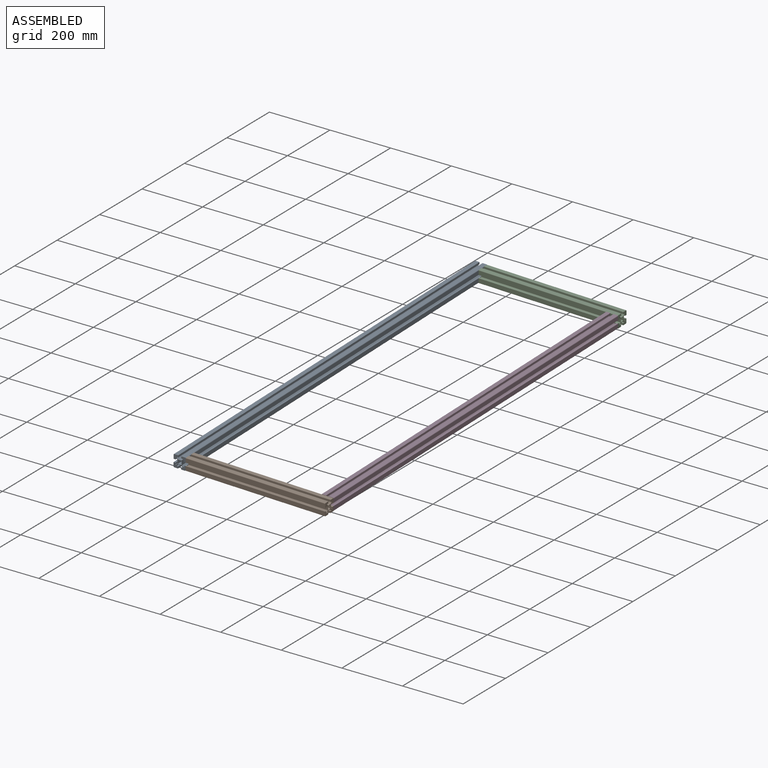
[diagram: assembled view]
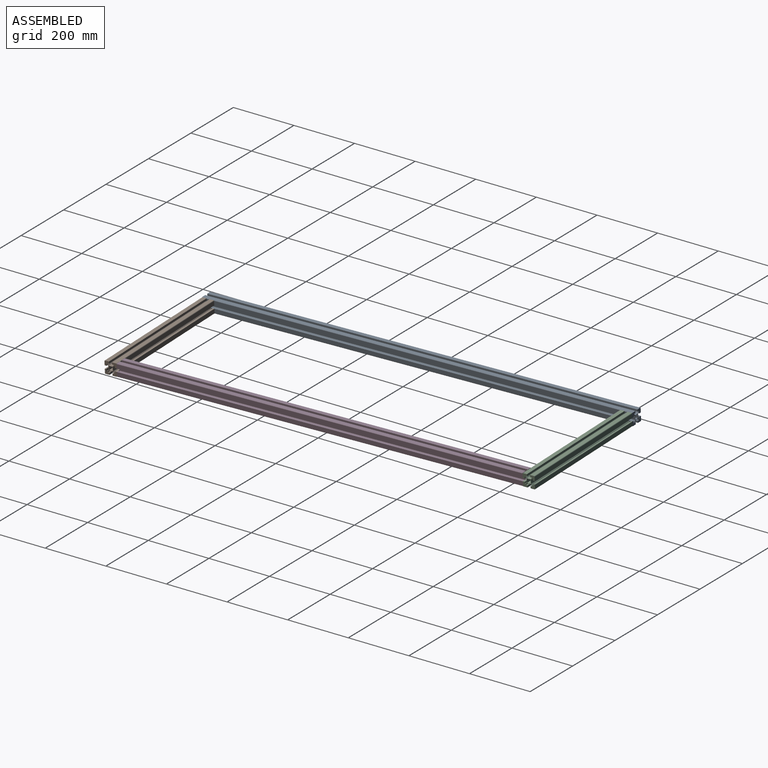
[diagram: assembled view, second angle]
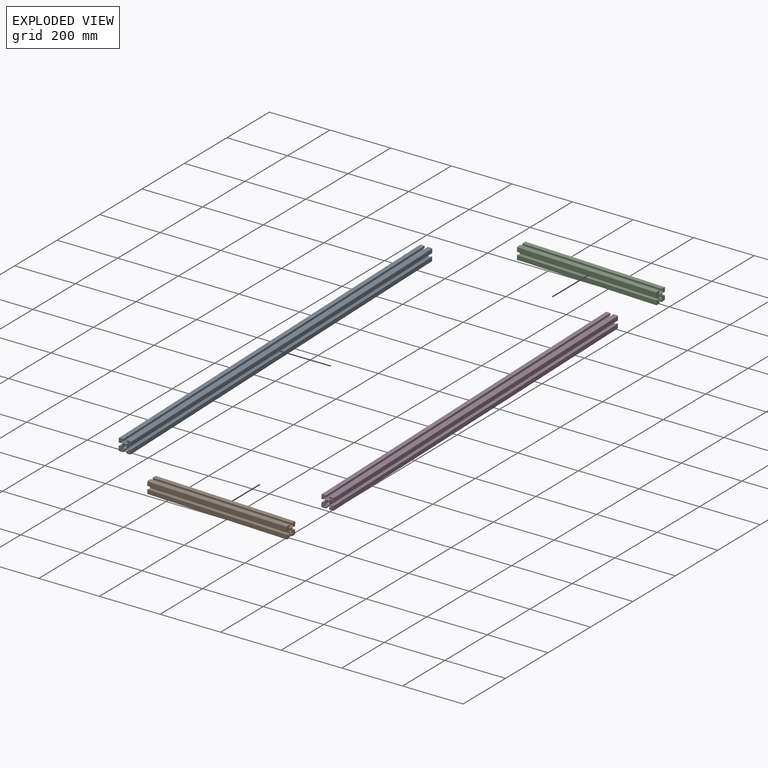
[diagram: exploded view]
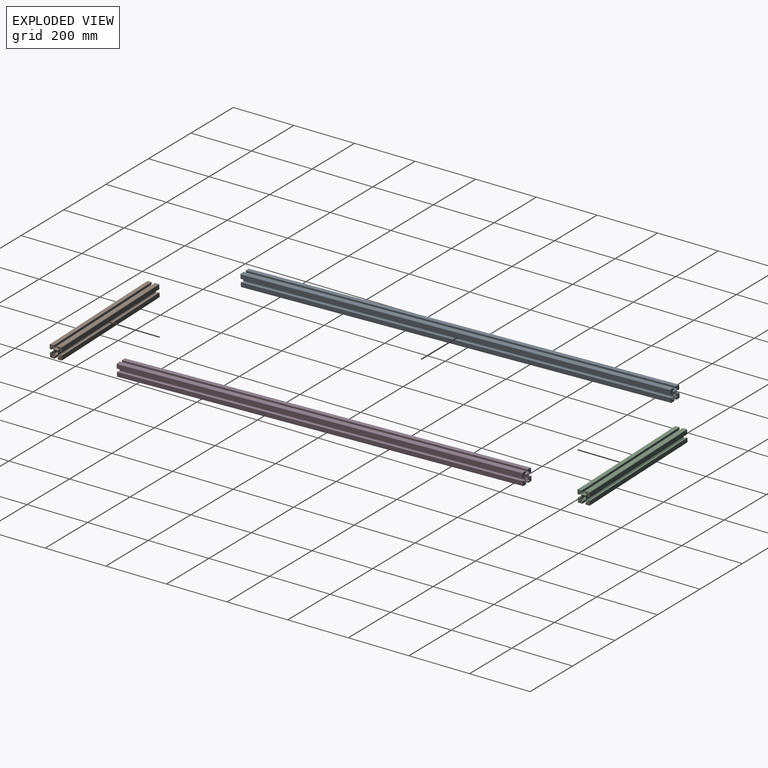
[diagram: exploded view, second angle]
ASSEMBLY  parts=4 mates=3
PART A: 56 faces, bbox 40x1420x40 mm
  f0: plane 1420x3.91mm, normal (0.7,0,0.71), area 7826.1mm2, adj f1,f49,f50,f51
  f1: plane 1420x2.1mm, normal (1,0,0), area 2984.3mm2, adj f0,f2,f50,f51
  f2: plane 1420x5mm, normal (0,0,-1), area 7100mm2, adj f1,f3,f50,f51
  f3: plane 1420x6.5mm, normal (1,0,0), area 9230mm2, adj f2,f4,f50,f51
  f4: plane 1420x13mm, normal (0,0,1), area 18460mm2, adj f3,f5,f50,f51
  f5: cylinder r=2mm len=1420mm, axis (0,1,0), area 4461.1mm2, adj f4,f6,f50,f51
  f6: plane 1420x13mm, normal (-1,0,0), area 18456.5mm2, adj f5,f7,f50,f51
  f7: plane 1420x6.5mm, normal (0,0,-1), area 9230mm2, adj f6,f8,f50,f51
  f8: plane 1420x5mm, normal (1,0,0), area 7096.5mm2, adj f7,f9,f50,f51
  f9: plane 1420x2.07mm, normal (0,0,-1), area 2945.2mm2, adj f8,f10,f50,f51
  f10: plane 1420x3.94mm, normal (-0.7,0,-0.71), area 7890.8mm2, adj f9,f11,f50,f51
  f11: plane 1420x12.21mm, normal (-1,0,0), area 17332.6mm2, adj f10,f12,f50,f51
  f12: plane 1420x3.88mm, normal (-0.71,0,0.7), area 7716.1mm2, adj f11,f13,f50,f51
  f13: plane 1420x2.21mm, normal (0,0,1), area 3143.8mm2, adj f12,f14,f50,f51
  f14: plane 1420x5mm, normal (1,0,0), area 7103.5mm2, adj f13,f15,f50,f51
  f15: plane 1420x6.5mm, normal (0,0,1), area 9230mm2, adj f14,f16,f50,f51
  f16: plane 1420x13mm, normal (-1,0,0), area 18463.5mm2, adj f15,f17,f50,f51
  f17: cylinder r=2mm len=1420mm, axis (0,1,0), area 4461.1mm2, adj f16,f18,f50,f51
  f18: plane 1420x12.8mm, normal (0,0,-1), area 18174.1mm2, adj f17,f19,f50,f51
  f19: plane 1420x4.5mm, normal (1,0,0), area 6390mm2, adj f18,f20,f50,f51
  f20: plane 1420x8.7mm, normal (0,0,1), area 12350.2mm2, adj f19,f21,f50,f51
  f21: plane 1420x2mm, normal (0.71,0,-0.7), area 3980mm2, adj f20,f22,f50,f51
  f22: plane 1420x1.94mm, normal (0,0,-1), area 2747.8mm2, adj f21,f23,f50,f51
  f23: plane 1420x1.97mm, normal (1,0,0), area 2798.7mm2, adj f22,f24,f50,f51
  f24: plane 1420x4.01mm, normal (0.71,0,-0.7), area 7981mm2, adj f23,f25,f50,f51
  f25: plane 1420x12.15mm, normal (0,0,-1), area 17250.4mm2, adj f24,f26,f50,f51
  f26: plane 1420x3.91mm, normal (-0.7,0,-0.71), area 7811.7mm2, adj f25,f27,f50,f51
  f27: plane 1420x2.12mm, normal (-1,0,0), area 3004.7mm2, adj f26,f28,f50,f51
  f28: plane 1420x4.8mm, normal (0,0,1), area 6814.1mm2, adj f27,f29,f50,f51
  f29: plane 1420x6.5mm, normal (-1,0,0), area 9230mm2, adj f28,f30,f50,f51
  f30: plane 1420x12.8mm, normal (0,0,-1), area 18174.1mm2, adj f29,f31,f50,f51
  f31: cylinder r=2mm len=1420mm, axis (0,1,0), area 4461.1mm2, adj f30,f32,f50,f51
  f32: plane 1420x13mm, normal (1,0,0), area 18460mm2, adj f31,f33,f50,f51
  f33: plane 1420x6.5mm, normal (0,0,1), area 9230mm2, adj f32,f34,f50,f51
  f34: plane 1420x5mm, normal (-1,0,0), area 7100mm2, adj f33,f35,f50,f51
  f35: plane 1420x2.08mm, normal (0,0,1), area 2957mm2, adj f34,f36,f50,f51
  f36: plane 1420x3.94mm, normal (0.71,0,0.71), area 7882.5mm2, adj f35,f37,f50,f51
  f37: plane 1420x12.17mm, normal (1,0,0), area 17283.6mm2, adj f36,f38,f50,f51
  f38: plane 1420x3.94mm, normal (0.7,0,-0.71), area 7890.8mm2, adj f37,f39,f50,f51
  f39: plane 1420x2.07mm, normal (0,0,-1), area 2945.2mm2, adj f38,f40,f50,f51
  f40: plane 1420x5mm, normal (-1,0,0), area 7100mm2, adj f39,f41,f50,f51
  f41: plane 1420x6.5mm, normal (0,0,-1), area 9230mm2, adj f40,f42,f50,f51
  f42: plane 1420x13mm, normal (1,0,0), area 18460mm2, adj f41,f43,f50,f51
  f43: cylinder r=2mm len=1420mm, axis (0,1,0), area 4461.1mm2, adj f42,f44,f50,f51
  f44: plane 1420x13mm, normal (0,0,1), area 18460mm2, adj f43,f45,f50,f51
  f45: plane 1420x6.5mm, normal (-1,0,0), area 9230mm2, adj f44,f46,f50,f51
  f46: plane 1420x5mm, normal (0,0,-1), area 7100mm2, adj f45,f47,f50,f51
  f47: plane 1420x2.1mm, normal (-1,0,0), area 2981.4mm2, adj f46,f48,f50,f51
  f48: plane 1420x3.91mm, normal (-0.7,0,0.71), area 7828.1mm2, adj f47,f49,f50,f51
  f49: plane 1420x12.17mm, normal (0,0,1), area 17283.6mm2, adj f0,f48,f50,f51
  f50: plane 40x40mm, normal (0,-1,0), area 751.5mm2, adj f0,f1,f2,f3,f4,f5,f6,f7
  f51: plane 40x40mm, normal (0,1,0), area 751.5mm2, adj f0,f1,f2,f3,f4,f5,f6,f7
  f52: plane 1420x12.17mm, normal (0,0,-1), area 17283.6mm2, adj f50,f51,f53,f54
  f53: plane 1420x12.17mm, normal (-1,0,0), area 17283.6mm2, adj f50,f51,f52,f55
  f54: plane 1420x12.17mm, normal (1,0,0), area 17283.6mm2, adj f50,f51,f52,f55
  f55: plane 1420x12.17mm, normal (0,0,1), area 17283.6mm2, adj f50,f51,f53,f54
PART B: 56 faces, bbox 40x460x40 mm
  f0: plane 460x3.91mm, normal (0.7,0,0.71), area 2535.2mm2, adj f1,f49,f50,f51
  f1: plane 460x2.1mm, normal (1,0,0), area 966.7mm2, adj f0,f2,f50,f51
  f2: plane 460x5mm, normal (0,0,-1), area 2300mm2, adj f1,f3,f50,f51
  f3: plane 460x6.5mm, normal (1,0,0), area 2990mm2, adj f2,f4,f50,f51
  f4: plane 460x13mm, normal (0,0,1), area 5980mm2, adj f3,f5,f50,f51
  f5: cylinder r=2mm len=460mm, axis (0,1,0), area 1445.1mm2, adj f4,f6,f50,f51
  f6: plane 460x13mm, normal (-1,0,0), area 5978.9mm2, adj f5,f7,f50,f51
  f7: plane 460x6.5mm, normal (0,0,-1), area 2990mm2, adj f6,f8,f50,f51
  f8: plane 460x5mm, normal (1,0,0), area 2298.9mm2, adj f7,f9,f50,f51
  f9: plane 460x2.07mm, normal (0,0,-1), area 954.1mm2, adj f8,f10,f50,f51
  f10: plane 460x3.94mm, normal (-0.7,0,-0.71), area 2556.2mm2, adj f9,f11,f50,f51
  f11: plane 460x12.21mm, normal (-1,0,0), area 5614.8mm2, adj f10,f12,f50,f51
  f12: plane 460x3.88mm, normal (-0.71,0,0.7), area 2499.6mm2, adj f11,f13,f50,f51
  f13: plane 460x2.21mm, normal (0,0,1), area 1018.4mm2, adj f12,f14,f50,f51
  f14: plane 460x5mm, normal (1,0,0), area 2301.1mm2, adj f13,f15,f50,f51
  f15: plane 460x6.5mm, normal (0,0,1), area 2990mm2, adj f14,f16,f50,f51
  f16: plane 460x13mm, normal (-1,0,0), area 5981.1mm2, adj f15,f17,f50,f51
  f17: cylinder r=2mm len=460mm, axis (0,1,0), area 1445.1mm2, adj f16,f18,f50,f51
  f18: plane 460x12.8mm, normal (0,0,-1), area 5887.4mm2, adj f17,f19,f50,f51
  f19: plane 460x4.5mm, normal (1,0,0), area 2070mm2, adj f18,f20,f50,f51
  f20: plane 460x8.7mm, normal (0,0,1), area 4000.8mm2, adj f19,f21,f50,f51
  f21: plane 460x2mm, normal (0.71,0,-0.7), area 1289.3mm2, adj f20,f22,f50,f51
  f22: plane 460x1.94mm, normal (0,0,-1), area 890.1mm2, adj f21,f23,f50,f51
  f23: plane 460x1.97mm, normal (1,0,0), area 906.6mm2, adj f22,f24,f50,f51
  f24: plane 460x4.01mm, normal (0.71,0,-0.7), area 2585.4mm2, adj f23,f25,f50,f51
  f25: plane 460x12.15mm, normal (0,0,-1), area 5588.2mm2, adj f24,f26,f50,f51
  f26: plane 460x3.91mm, normal (-0.7,0,-0.71), area 2530.6mm2, adj f25,f27,f50,f51
  f27: plane 460x2.12mm, normal (-1,0,0), area 973.4mm2, adj f26,f28,f50,f51
  f28: plane 460x4.8mm, normal (0,0,1), area 2207.4mm2, adj f27,f29,f50,f51
  f29: plane 460x6.5mm, normal (-1,0,0), area 2990mm2, adj f28,f30,f50,f51
  f30: plane 460x12.8mm, normal (0,0,-1), area 5887.4mm2, adj f29,f31,f50,f51
  f31: cylinder r=2mm len=460mm, axis (0,1,0), area 1445.1mm2, adj f30,f32,f50,f51
  f32: plane 460x13mm, normal (1,0,0), area 5980mm2, adj f31,f33,f50,f51
  f33: plane 460x6.5mm, normal (0,0,1), area 2990mm2, adj f32,f34,f50,f51
  f34: plane 460x5mm, normal (-1,0,0), area 2300mm2, adj f33,f35,f50,f51
  f35: plane 460x2.08mm, normal (0,0,1), area 957.9mm2, adj f34,f36,f50,f51
  f36: plane 460x3.94mm, normal (0.71,0,0.71), area 2553.5mm2, adj f35,f37,f50,f51
  f37: plane 460x12.17mm, normal (1,0,0), area 5598.9mm2, adj f36,f38,f50,f51
  f38: plane 460x3.94mm, normal (0.7,0,-0.71), area 2556.2mm2, adj f37,f39,f50,f51
  f39: plane 460x2.07mm, normal (0,0,-1), area 954.1mm2, adj f38,f40,f50,f51
  f40: plane 460x5mm, normal (-1,0,0), area 2300mm2, adj f39,f41,f50,f51
  f41: plane 460x6.5mm, normal (0,0,-1), area 2990mm2, adj f40,f42,f50,f51
  f42: plane 460x13mm, normal (1,0,0), area 5980mm2, adj f41,f43,f50,f51
  f43: cylinder r=2mm len=460mm, axis (0,1,0), area 1445.1mm2, adj f42,f44,f50,f51
  f44: plane 460x13mm, normal (0,0,1), area 5980mm2, adj f43,f45,f50,f51
  f45: plane 460x6.5mm, normal (-1,0,0), area 2990mm2, adj f44,f46,f50,f51
  f46: plane 460x5mm, normal (0,0,-1), area 2300mm2, adj f45,f47,f50,f51
  f47: plane 460x2.1mm, normal (-1,0,0), area 965.8mm2, adj f46,f48,f50,f51
  f48: plane 460x3.91mm, normal (-0.7,0,0.71), area 2535.9mm2, adj f47,f49,f50,f51
  f49: plane 460x12.17mm, normal (0,0,1), area 5598.9mm2, adj f0,f48,f50,f51
  f50: plane 40x40mm, normal (0,-1,0), area 751.5mm2, adj f0,f1,f2,f3,f4,f5,f6,f7
  f51: plane 40x40mm, normal (0,1,0), area 751.5mm2, adj f0,f1,f2,f3,f4,f5,f6,f7
  f52: plane 460x12.17mm, normal (0,0,-1), area 5598.9mm2, adj f50,f51,f53,f54
  f53: plane 460x12.17mm, normal (-1,0,0), area 5598.9mm2, adj f50,f51,f52,f55
  f54: plane 460x12.17mm, normal (1,0,0), area 5598.9mm2, adj f50,f51,f52,f55
  f55: plane 460x12.17mm, normal (0,0,1), area 5598.9mm2, adj f50,f51,f53,f54
PART C: same geometry as B
PART D: 56 faces, bbox 40x1340x40 mm
  f0: plane 1340x3.91mm, normal (0.7,0,0.71), area 7385.2mm2, adj f1,f49,f50,f51
  f1: plane 1340x2.1mm, normal (1,0,0), area 2816.2mm2, adj f0,f2,f50,f51
  f2: plane 1340x5mm, normal (0,0,-1), area 6700mm2, adj f1,f3,f50,f51
  f3: plane 1340x6.5mm, normal (1,0,0), area 8710mm2, adj f2,f4,f50,f51
  f4: plane 1340x13mm, normal (0,0,1), area 17420mm2, adj f3,f5,f50,f51
  f5: cylinder r=2mm len=1340mm, axis (0,1,0), area 4209.7mm2, adj f4,f6,f50,f51
  f6: plane 1340x13mm, normal (-1,0,0), area 17416.7mm2, adj f5,f7,f50,f51
  f7: plane 1340x6.5mm, normal (0,0,-1), area 8710mm2, adj f6,f8,f50,f51
  f8: plane 1340x5mm, normal (1,0,0), area 6696.7mm2, adj f7,f9,f50,f51
  f9: plane 1340x2.07mm, normal (0,0,-1), area 2779.3mm2, adj f8,f10,f50,f51
  f10: plane 1340x3.94mm, normal (-0.7,0,-0.71), area 7446.3mm2, adj f9,f11,f50,f51
  f11: plane 1340x12.21mm, normal (-1,0,0), area 16356.1mm2, adj f10,f12,f50,f51
  f12: plane 1340x3.88mm, normal (-0.71,0,0.7), area 7281.4mm2, adj f11,f13,f50,f51
  f13: plane 1340x2.21mm, normal (0,0,1), area 2966.6mm2, adj f12,f14,f50,f51
  f14: plane 1340x5mm, normal (1,0,0), area 6703.3mm2, adj f13,f15,f50,f51
  f15: plane 1340x6.5mm, normal (0,0,1), area 8710mm2, adj f14,f16,f50,f51
  f16: plane 1340x13mm, normal (-1,0,0), area 17423.3mm2, adj f15,f17,f50,f51
  f17: cylinder r=2mm len=1340mm, axis (0,1,0), area 4209.7mm2, adj f16,f18,f50,f51
  f18: plane 1340x12.8mm, normal (0,0,-1), area 17150.2mm2, adj f17,f19,f50,f51
  f19: plane 1340x4.5mm, normal (1,0,0), area 6030mm2, adj f18,f20,f50,f51
  f20: plane 1340x8.7mm, normal (0,0,1), area 11654.4mm2, adj f19,f21,f50,f51
  f21: plane 1340x2mm, normal (0.71,0,-0.7), area 3755.8mm2, adj f20,f22,f50,f51
  f22: plane 1340x1.94mm, normal (0,0,-1), area 2593mm2, adj f21,f23,f50,f51
  f23: plane 1340x1.97mm, normal (1,0,0), area 2641mm2, adj f22,f24,f50,f51
  f24: plane 1340x4.01mm, normal (0.71,0,-0.7), area 7531.4mm2, adj f23,f25,f50,f51
  f25: plane 1340x12.15mm, normal (0,0,-1), area 16278.6mm2, adj f24,f26,f50,f51
  f26: plane 1340x3.91mm, normal (-0.7,0,-0.71), area 7371.6mm2, adj f25,f27,f50,f51
  f27: plane 1340x2.12mm, normal (-1,0,0), area 2835.4mm2, adj f26,f28,f50,f51
  f28: plane 1340x4.8mm, normal (0,0,1), area 6430.2mm2, adj f27,f29,f50,f51
  f29: plane 1340x6.5mm, normal (-1,0,0), area 8710mm2, adj f28,f30,f50,f51
  f30: plane 1340x12.8mm, normal (0,0,-1), area 17150.2mm2, adj f29,f31,f50,f51
  f31: cylinder r=2mm len=1340mm, axis (0,1,0), area 4209.7mm2, adj f30,f32,f50,f51
  f32: plane 1340x13mm, normal (1,0,0), area 17420mm2, adj f31,f33,f50,f51
  f33: plane 1340x6.5mm, normal (0,0,1), area 8710mm2, adj f32,f34,f50,f51
  f34: plane 1340x5mm, normal (-1,0,0), area 6700mm2, adj f33,f35,f50,f51
  f35: plane 1340x2.08mm, normal (0,0,1), area 2790.4mm2, adj f34,f36,f50,f51
  f36: plane 1340x3.94mm, normal (0.71,0,0.71), area 7438.4mm2, adj f35,f37,f50,f51
  f37: plane 1340x12.17mm, normal (1,0,0), area 16309.9mm2, adj f36,f38,f50,f51
  f38: plane 1340x3.94mm, normal (0.7,0,-0.71), area 7446.3mm2, adj f37,f39,f50,f51
  f39: plane 1340x2.07mm, normal (0,0,-1), area 2779.3mm2, adj f38,f40,f50,f51
  f40: plane 1340x5mm, normal (-1,0,0), area 6700mm2, adj f39,f41,f50,f51
  f41: plane 1340x6.5mm, normal (0,0,-1), area 8710mm2, adj f40,f42,f50,f51
  f42: plane 1340x13mm, normal (1,0,0), area 17420mm2, adj f41,f43,f50,f51
  f43: cylinder r=2mm len=1340mm, axis (0,1,0), area 4209.7mm2, adj f42,f44,f50,f51
  f44: plane 1340x13mm, normal (0,0,1), area 17420mm2, adj f43,f45,f50,f51
  f45: plane 1340x6.5mm, normal (-1,0,0), area 8710mm2, adj f44,f46,f50,f51
  f46: plane 1340x5mm, normal (0,0,-1), area 6700mm2, adj f45,f47,f50,f51
  f47: plane 1340x2.1mm, normal (-1,0,0), area 2813.5mm2, adj f46,f48,f50,f51
  f48: plane 1340x3.91mm, normal (-0.7,0,0.71), area 7387.1mm2, adj f47,f49,f50,f51
  f49: plane 1340x12.17mm, normal (0,0,1), area 16309.9mm2, adj f0,f48,f50,f51
  f50: plane 40x40mm, normal (0,-1,0), area 751.5mm2, adj f0,f1,f2,f3,f4,f5,f6,f7
  f51: plane 40x40mm, normal (0,1,0), area 751.5mm2, adj f0,f1,f2,f3,f4,f5,f6,f7
  f52: plane 1340x12.17mm, normal (0,0,-1), area 16309.9mm2, adj f50,f51,f53,f54
  f53: plane 1340x12.17mm, normal (-1,0,0), area 16309.9mm2, adj f50,f51,f52,f55
  f54: plane 1340x12.17mm, normal (1,0,0), area 16309.9mm2, adj f50,f51,f52,f55
  f55: plane 1340x12.17mm, normal (0,0,1), area 16309.9mm2, adj f50,f51,f53,f54
PLACE A rot(axis=(0.01,-1,-0.01),88.4deg) t=(-4641.09,6942.37,202.12)mm
PLACE B rot(axis=(-0.58,-0.57,-0.58),118.3deg) t=(-4161.57,5543,154.98)mm
PLACE C rot(axis=(0.59,-0.58,0.56),119.9deg) t=(-4621.1,6922.38,201.08)mm
PLACE D rot(axis=(0.65,0.76,0),2.1deg) t=(-4181.28,6902.59,188.3)mm
MATE fastened A.f50 <-> B.f30  axis (0,-1,-0.02) through (-4621.25,5522.66,172.55)mm
MATE fastened B.f51 <-> D.f42  axis (1,0,-0.03) through (-4161.43,5562.87,160.46)mm
MATE fastened C.f30 <-> A.f51  axis (0,1,0.02) through (-4620.95,6942.25,206.76)mm
